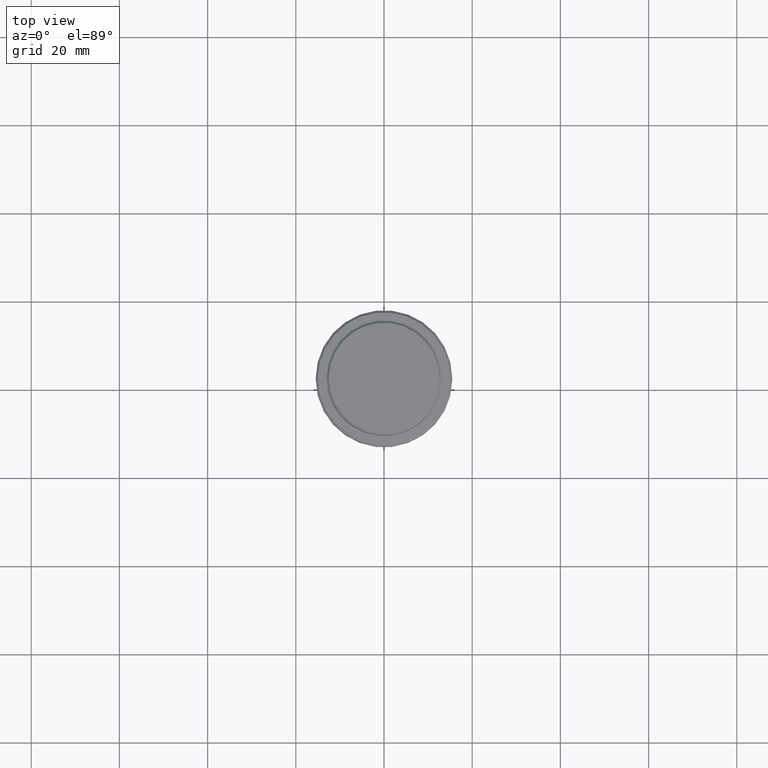
[diagram: clean part render]
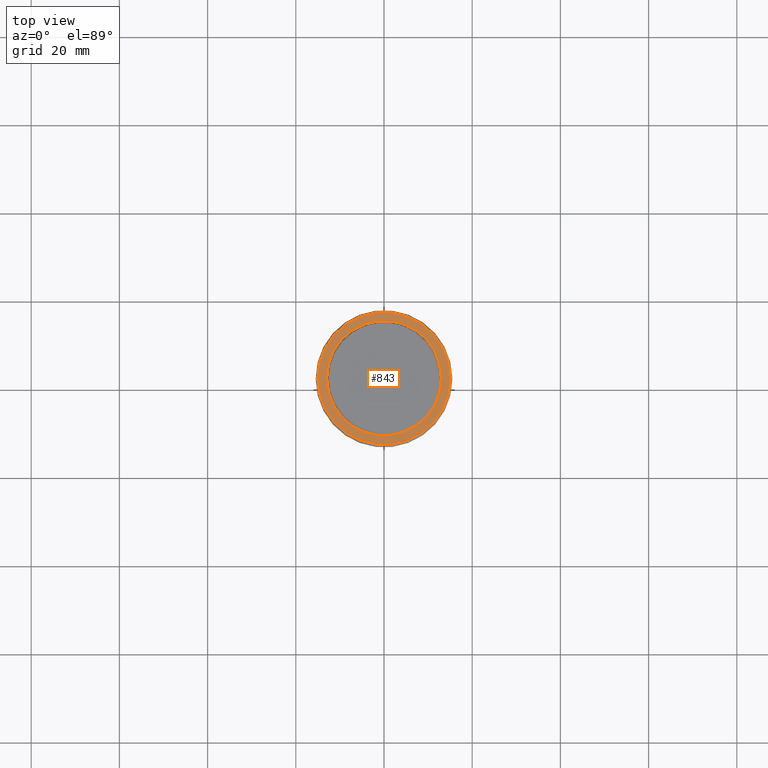
[diagram: same view with one face highlighted and labeled with its STEP entity id]
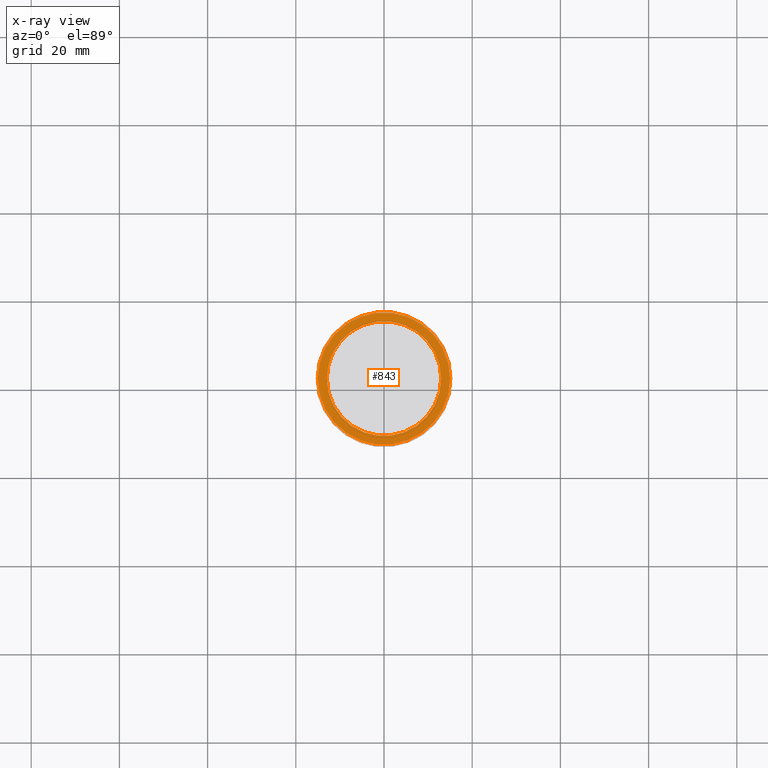
[diagram: x-ray of the same camera — body ghosted, the highlighted face saturated]
A machine part, top view. The second image highlights one B-rep face of the part: STEP entity #843.
The next image is the same camera in x-ray: the body ghosted, the highlighted face saturated — about 0% of this face is hidden behind the body in this view.
In plain terms, the highlighted planar face has unit normal (0, -0, 1).
Its self-contained STEP definition (entity closure, byte-faithful):
#25 = DIRECTION ( 'NONE',  ( -0.000000000000000000, -0.000000000000000000, 1.000000000000000000 ) ) ;
#26 = EDGE_CURVE ( 'NONE', #1142, #51, #624, .T. ) ;
#51 = VERTEX_POINT ( 'NONE', #701 ) ;
#64 = AXIS2_PLACEMENT_3D ( 'NONE', #1003, #25, #456 ) ;
#79 = PLANE ( 'NONE',  #899 ) ;
#139 = CARTESIAN_POINT ( 'NONE',  ( -14.99999999999998579, 0.000000000000000000, -9.000000000000000000 ) ) ;
#152 = EDGE_LOOP ( 'NONE', ( #482, #1083 ) ) ;
#189 = EDGE_CURVE ( 'NONE', #642, #946, #1321, .T. ) ;
#224 = CARTESIAN_POINT ( 'NONE',  ( -12.99999999999999467, 1.592040838891558504E-15, -9.000000000000000000 ) ) ;
#276 = DIRECTION ( 'NONE',  ( 1.000000000000000000, 0.000000000000000000, 0.000000000000000000 ) ) ;
#288 = FACE_BOUND ( 'NONE', #1393, .T. ) ;
#387 = DIRECTION ( 'NONE',  ( 1.000000000000000000, 0.000000000000000000, 0.000000000000000000 ) ) ;
#394 = DIRECTION ( 'NONE',  ( 1.000000000000000000, 0.000000000000000000, 0.000000000000000000 ) ) ;
#427 = AXIS2_PLACEMENT_3D ( 'NONE', #706, #1369, #394 ) ;
#447 = CIRCLE ( 'NONE', #64, 14.99999999999998579 ) ;
#456 = DIRECTION ( 'NONE',  ( 1.000000000000000000, 0.000000000000000000, 0.000000000000000000 ) ) ;
#479 = CARTESIAN_POINT ( 'NONE',  ( 0.000000000000000000, 12.49999999999999289, -9.000000000000000000 ) ) ;
#482 = ORIENTED_EDGE ( 'NONE', *, *, #26, .T. ) ;
#624 = CIRCLE ( 'NONE', #1298, 14.99999999999998579 ) ;
#642 = VERTEX_POINT ( 'NONE', #957 ) ;
#680 = ORIENTED_EDGE ( 'NONE', *, *, #189, .T. ) ;
#701 = CARTESIAN_POINT ( 'NONE',  ( 14.99999999999998579, 1.867586368699712587E-15, -9.000000000000000000 ) ) ;
#706 = CARTESIAN_POINT ( 'NONE',  ( 0.000000000000000000, 0.000000000000000000, -9.000000000000000000 ) ) ;
#786 = EDGE_CURVE ( 'NONE', #51, #1142, #447, .T. ) ;
#809 = CIRCLE ( 'NONE', #427, 12.99999999999999467 ) ;
#811 = FACE_OUTER_BOUND ( 'NONE', #152, .T. ) ;
#843 = ADVANCED_FACE ( 'NONE', ( #811, #288 ), #79, .T. ) ;
#870 = CARTESIAN_POINT ( 'NONE',  ( 0.000000000000000000, 0.000000000000000000, -9.000000000000000000 ) ) ;
#875 = DIRECTION ( 'NONE',  ( 0.000000000000000000, 0.000000000000000000, -1.000000000000000000 ) ) ;
#899 = AXIS2_PLACEMENT_3D ( 'NONE', #479, #1168, #387 ) ;
#916 = EDGE_CURVE ( 'NONE', #946, #642, #809, .T. ) ;
#946 = VERTEX_POINT ( 'NONE', #224 ) ;
#957 = CARTESIAN_POINT ( 'NONE',  ( 12.99999999999999467, 0.000000000000000000, -9.000000000000000000 ) ) ;
#1003 = CARTESIAN_POINT ( 'NONE',  ( 0.000000000000000000, 0.000000000000000000, -9.000000000000000000 ) ) ;
#1083 = ORIENTED_EDGE ( 'NONE', *, *, #786, .T. ) ;
#1142 = VERTEX_POINT ( 'NONE', #139 ) ;
#1147 = CARTESIAN_POINT ( 'NONE',  ( 0.000000000000000000, 0.000000000000000000, -9.000000000000000000 ) ) ;
#1168 = DIRECTION ( 'NONE',  ( 0.000000000000000000, -0.000000000000000000, 1.000000000000000000 ) ) ;
#1254 = DIRECTION ( 'NONE',  ( -0.000000000000000000, -0.000000000000000000, 1.000000000000000000 ) ) ;
#1273 = AXIS2_PLACEMENT_3D ( 'NONE', #870, #875, #1308 ) ;
#1298 = AXIS2_PLACEMENT_3D ( 'NONE', #1147, #1254, #276 ) ;
#1308 = DIRECTION ( 'NONE',  ( 1.000000000000000000, 0.000000000000000000, 0.000000000000000000 ) ) ;
#1321 = CIRCLE ( 'NONE', #1273, 12.99999999999999467 ) ;
#1362 = ORIENTED_EDGE ( 'NONE', *, *, #916, .T. ) ;
#1369 = DIRECTION ( 'NONE',  ( 0.000000000000000000, 0.000000000000000000, -1.000000000000000000 ) ) ;
#1393 = EDGE_LOOP ( 'NONE', ( #680, #1362 ) ) ;